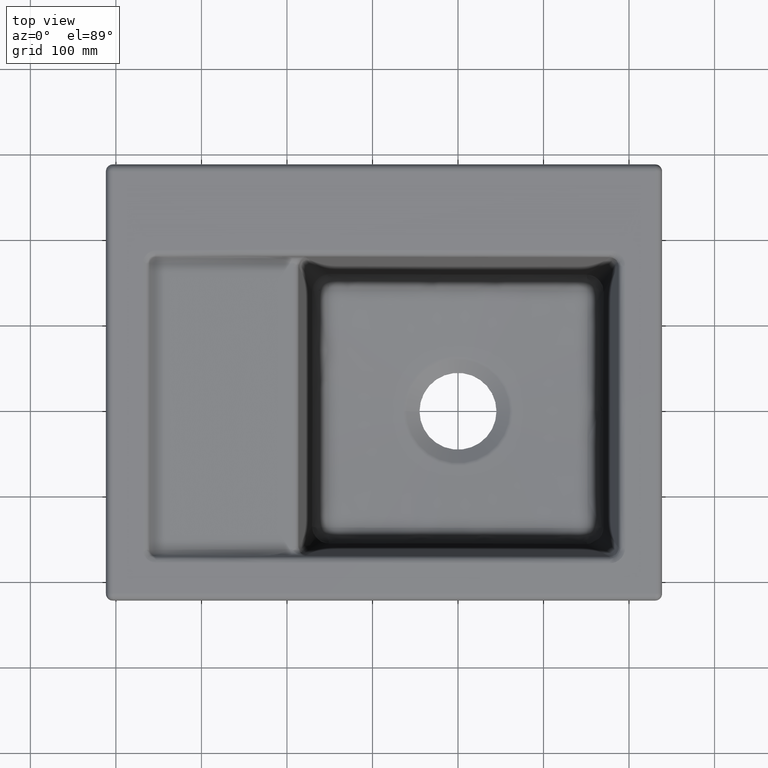
[diagram: clean part render]
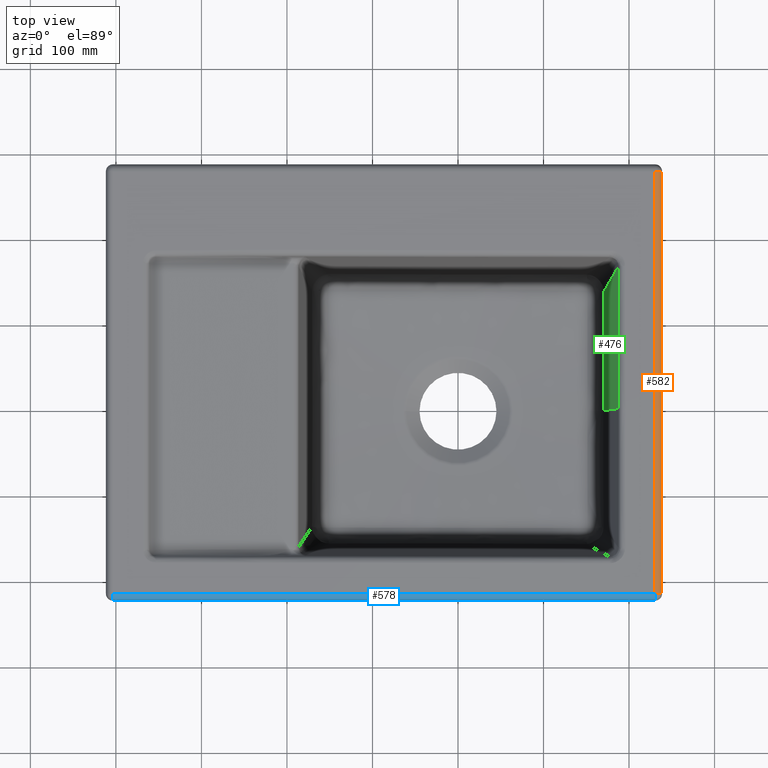
[diagram: same view with three faces highlighted in distinct colors, each labeled with its STEP entity id]
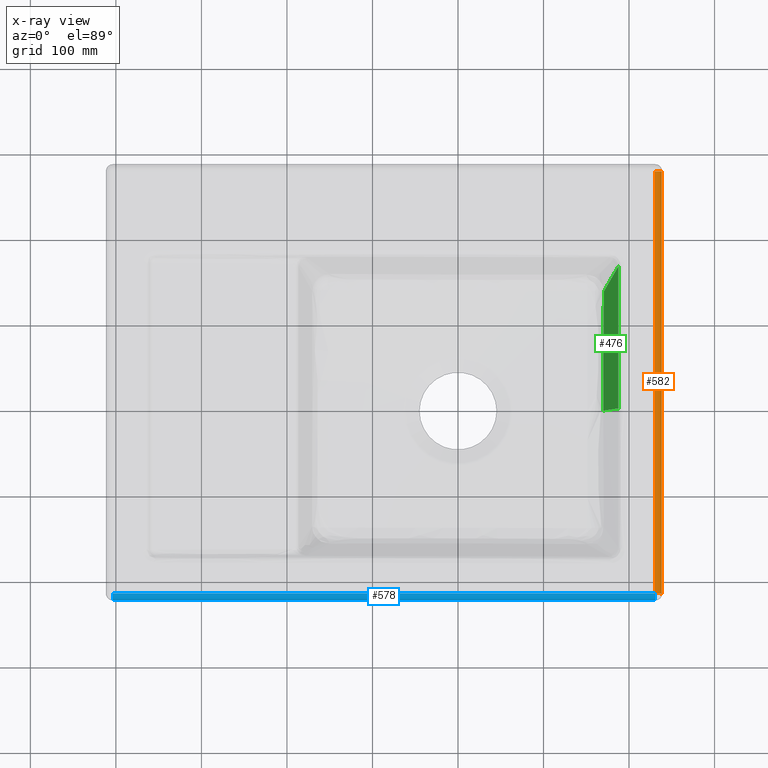
[diagram: x-ray of the same camera — body ghosted, the three highlighted faces saturated]
A machine part, top view with three faces highlighted in distinct colors.
The next image is the same camera in x-ray (body ghosted, the three faces saturated) — at least one of them is partly hidden behind the body in this view.
Their STEP definitions:

[orange] entity #582 — the highlighted cylindrical surface (edge-blend (fillet) strip) has radius 8 mm, axis along (0, -1, 0).
#140=CYLINDRICAL_SURFACE('',#4018,8.00000000000091);
#213=CIRCLE('',#4013,8.);
#215=CIRCLE('',#4017,8.);
#582=ADVANCED_FACE('',(#870),#140,.T.);
#870=FACE_OUTER_BOUND('',#1139,.T.);
#1139=EDGE_LOOP('',(#2233,#2234,#2235,#2236));
#2233=ORIENTED_EDGE('',*,*,#3571,.T.);
#2234=ORIENTED_EDGE('',*,*,#3264,.F.);
#2235=ORIENTED_EDGE('',*,*,#3573,.F.);
#2236=ORIENTED_EDGE('',*,*,#3278,.F.);
#2911=VERTEX_POINT('',#6353);
#2912=VERTEX_POINT('',#6355);
#2924=VERTEX_POINT('',#6539);
#2925=VERTEX_POINT('',#6541);
#3264=EDGE_CURVE('',#2911,#2912,#3771,.T.);
#3278=EDGE_CURVE('',#2924,#2925,#3781,.T.);
#3571=EDGE_CURVE('',#2924,#2912,#213,.T.);
#3573=EDGE_CURVE('',#2925,#2911,#215,.T.);
#3771=LINE('',#6354,#3850);
#3781=LINE('',#6540,#3860);
#3850=VECTOR('',#4258,1.);
#3860=VECTOR('',#4274,1.);
#4013=AXIS2_PLACEMENT_3D('',#14794,#4473,#4474);
#4017=AXIS2_PLACEMENT_3D('',#14798,#4481,#4482);
#4018=AXIS2_PLACEMENT_3D('',#14799,#4483,#4484);
#4258=DIRECTION('',(0.,-1.,0.));
#4274=DIRECTION('',(0.,1.,0.));
#4473=DIRECTION('',(-3.4885576356957E-15,1.,0.));
#4474=DIRECTION('',(-1.,-3.46944695195361E-15,0.));
#4481=DIRECTION('',(-6.9771152713916E-15,1.,0.));
#4482=DIRECTION('',(-1.,-6.93889390390723E-15,0.));
#4483=DIRECTION('',(0.,-1.,0.));
#4484=DIRECTION('',(0.,0.,-0.999999999999998));
#6353=CARTESIAN_POINT('',(238.319687992531,276.812870199513,212.836227706563));
#6354=CARTESIAN_POINT('',(238.319687992531,30.0154674628055,212.836227706563));
#6355=CARTESIAN_POINT('',(238.319687992527,-216.781935273899,212.836227706587));
#6539=CARTESIAN_POINT('',(230.363512829581,-216.781935273902,220.000000000421));
#6540=CARTESIAN_POINT('',(230.363512829584,30.0154674628054,220.000000000421));
#6541=CARTESIAN_POINT('',(230.363512829585,276.812870199513,220.000000000421));
#14794=CARTESIAN_POINT('',(230.363512829581,-216.781935273899,212.000000000421));
#14798=CARTESIAN_POINT('',(230.363512829585,276.812870199513,212.000000000421));
#14799=CARTESIAN_POINT('',(230.363512829584,-216.781935273902,212.000000000421));

[blue] entity #578 — the highlighted cylindrical surface (edge-blend (fillet) strip) has radius 8 mm, axis along (-1, -0, 0).
#138=CYLINDRICAL_SURFACE('',#4010,8.00000000000406);
#208=CIRCLE('',#4004,8.);
#211=CIRCLE('',#4009,8.);
#578=ADVANCED_FACE('',(#866),#138,.T.);
#866=FACE_OUTER_BOUND('',#1135,.T.);
#1135=EDGE_LOOP('',(#2219,#2220,#2221,#2222));
#2219=ORIENTED_EDGE('',*,*,#3566,.T.);
#2220=ORIENTED_EDGE('',*,*,#3260,.F.);
#2221=ORIENTED_EDGE('',*,*,#3569,.F.);
#2222=ORIENTED_EDGE('',*,*,#3277,.F.);
#2907=VERTEX_POINT('',#6341);
#2908=VERTEX_POINT('',#6343);
#2923=VERTEX_POINT('',#6538);
#2924=VERTEX_POINT('',#6539);
#3260=EDGE_CURVE('',#2907,#2908,#3768,.T.);
#3277=EDGE_CURVE('',#2923,#2924,#3780,.T.);
#3566=EDGE_CURVE('',#2923,#2908,#208,.T.);
#3569=EDGE_CURVE('',#2924,#2907,#211,.T.);
#3768=LINE('',#6342,#3847);
#3780=LINE('',#6537,#3859);
#3847=VECTOR('',#4253,1.);
#3859=VECTOR('',#4273,1.);
#4004=AXIS2_PLACEMENT_3D('',#14785,#4455,#4456);
#4009=AXIS2_PLACEMENT_3D('',#14790,#4465,#4466);
#4010=AXIS2_PLACEMENT_3D('',#14791,#4467,#4468);
#4253=DIRECTION('',(-1.,0.,0.));
#4273=DIRECTION('',(1.,0.,0.));
#4455=DIRECTION('',(1.,1.3954230542783E-14,0.));
#4456=DIRECTION('',(-1.38777878078145E-14,1.,0.));
#4465=DIRECTION('',(1.,2.79084610855662E-14,0.));
#4466=DIRECTION('',(-2.77555756156289E-14,1.,0.));
#4467=DIRECTION('',(-1.,-1.54128448174998E-14,1.71176983434369E-14));
#4468=DIRECTION('',(1.38777878078074E-14,0.,1.));
#6341=CARTESIAN_POINT('',(230.363512829583,-224.738110436848,212.836227706563));
#6342=CARTESIAN_POINT('',(-86.5216156341328,-224.738110436848,212.836227706563));
#6343=CARTESIAN_POINT('',(-403.406744097843,-224.738110436845,212.836227706591));
#6537=CARTESIAN_POINT('',(-86.5216156341324,-216.781935273902,220.000000000421));
#6538=CARTESIAN_POINT('',(-403.406744097847,-216.781935273899,220.000000000421));
#6539=CARTESIAN_POINT('',(230.363512829581,-216.781935273902,220.000000000421));
#14785=CARTESIAN_POINT('',(-403.406744097844,-216.781935273899,212.000000000421));
#14790=CARTESIAN_POINT('',(230.363512829581,-216.781935273902,212.000000000421));
#14791=CARTESIAN_POINT('',(-403.406744097846,-216.781935273903,212.000000000422));

[green] entity #476 — the highlighted face is a freeform B-spline surface patch.
#108=B_SPLINE_SURFACE_WITH_KNOTS('',3,3,((#5728,#5729,#5730,#5731,#5732,
#5733,#5734,#5735,#5736,#5737,#5738,#5739,#5740),(#5741,#5742,#5743,#5744,
#5745,#5746,#5747,#5748,#5749,#5750,#5751,#5752,#5753),(#5754,#5755,#5756,
#5757,#5758,#5759,#5760,#5761,#5762,#5763,#5764,#5765,#5766),(#5767,#5768,
#5769,#5770,#5771,#5772,#5773,#5774,#5775,#5776,#5777,#5778,#5779),(#5780,
#5781,#5782,#5783,#5784,#5785,#5786,#5787,#5788,#5789,#5790,#5791,#5792),
(#5793,#5794,#5795,#5796,#5797,#5798,#5799,#5800,#5801,#5802,#5803,#5804,
#5805),(#5806,#5807,#5808,#5809,#5810,#5811,#5812,#5813,#5814,#5815,#5816,
#5817,#5818),(#5819,#5820,#5821,#5822,#5823,#5824,#5825,#5826,#5827,#5828,
#5829,#5830,#5831),(#5832,#5833,#5834,#5835,#5836,#5837,#5838,#5839,#5840,
#5841,#5842,#5843,#5844),(#5845,#5846,#5847,#5848,#5849,#5850,#5851,#5852,
#5853,#5854,#5855,#5856,#5857),(#5858,#5859,#5860,#5861,#5862,#5863,#5864,
#5865,#5866,#5867,#5868,#5869,#5870),(#5871,#5872,#5873,#5874,#5875,#5876,
#5877,#5878,#5879,#5880,#5881,#5882,#5883),(#5884,#5885,#5886,#5887,#5888,
#5889,#5890,#5891,#5892,#5893,#5894,#5895,#5896)),.UNSPECIFIED.,.F.,.F.,
 .F.,(4,1,2,2,2,2,4),(4,1,1,2,2,2,1,4),(0.,0.308188576590857,0.377369718931771,
0.446550861272685,0.584913145954514,0.861637715318171,1.),(0.,0.0883892625186422,
0.0988389262518642,0.110891699315591,0.345041319327041,0.462116129332766,
0.5,1.),.UNSPECIFIED.);
#451=(
BOUNDED_CURVE()
B_SPLINE_CURVE(3,(#5673,#5674,#5675,#5676,#5677,#5678,#5679,#5680),
 .UNSPECIFIED.,.F.,.F.)
B_SPLINE_CURVE_WITH_KNOTS((4,2,2,4),(0.,0.104568056302663,0.408141535285834,
1.),.UNSPECIFIED.)
CURVE()
GEOMETRIC_REPRESENTATION_ITEM()
RATIONAL_B_SPLINE_CURVE((1.00000000000003,1.00000000000003,1.00000000000003,
1.00000000000003,1.00000000000003,1.00000000000003,1.00000000000003,1.00000000000003))
REPRESENTATION_ITEM('')
);
#476=ADVANCED_FACE('',(#770),#108,.F.);
#770=FACE_OUTER_BOUND('',#1027,.T.);
#1027=EDGE_LOOP('',(#1718,#1719,#1720,#1721,#1722));
#1342=B_SPLINE_CURVE_WITH_KNOTS('',3,(#5635,#5636,#5637,#5638,#5639,#5640,
#5641,#5642,#5643,#5644,#5645,#5646,#5647),.UNSPECIFIED.,.F.,.F.,(4,1,1,
2,2,2,1,4),(0.,0.0883892625186422,0.0988389262518642,0.110891699315591,
0.345041319327041,0.462116129332766,0.5,1.),.UNSPECIFIED.);
#1343=B_SPLINE_CURVE_WITH_KNOTS('',3,(#5650,#5651,#5652,#5653,#5654,#5655,
#5656,#5657,#5658,#5659,#5660,#5661,#5662,#5663,#5664,#5665,#5666),
 .UNSPECIFIED.,.F.,.F.,(4,2,1,1,1,1,1,1,1,2,2,4),(0.,0.249999999999968,
0.374999999999952,0.437499999999944,0.46874999999994,0.484374999999938,
0.492187499999937,0.496093749999936,0.498046874999936,0.499023437499936,
0.499999999999936,1.),.UNSPECIFIED.);
#1344=B_SPLINE_CURVE_WITH_KNOTS('',3,(#5668,#5669,#5670,#5671),
 .UNSPECIFIED.,.F.,.F.,(4,4),(0.,1.),.UNSPECIFIED.);
#1345=B_SPLINE_CURVE_WITH_KNOTS('',3,(#5682,#5683,#5684,#5685,#5686,#5687,
#5688,#5689,#5690,#5691,#5692,#5693,#5694,#5695,#5696,#5697,#5698,#5699,
#5700,#5701,#5702,#5703,#5704,#5705,#5706,#5707,#5708,#5709,#5710,#5711,
#5712,#5713,#5714,#5715,#5716,#5717,#5718,#5719,#5720,#5721,#5722,#5723,
#5724,#5725,#5726,#5727),.UNSPECIFIED.,.F.,.F.,(4,2,2,1,1,1,2,2,2,2,2,1,
2,2,2,2,1,1,2,2,2,2,1,1,2,2,4),(0.,0.0312499999999792,0.0468749999999691,
0.0546874999999643,0.0585937499999617,0.0605468749999604,0.06152343749996,
0.0624999999999596,0.0937499999999632,0.109374999999965,0.117187499999967,
0.121093749999967,0.123046874999967,0.124999999999968,0.187499999999975,
0.218749999999979,0.234374999999981,0.242187499999981,0.246093749999982,
0.249999999999982,0.374999999999985,0.437499999999987,0.468749999999988,
0.484374999999988,0.492187499999988,0.499999999999988,1.),.UNSPECIFIED.);
#1718=ORIENTED_EDGE('',*,*,#3242,.F.);
#1719=ORIENTED_EDGE('',*,*,#3243,.T.);
#1720=ORIENTED_EDGE('',*,*,#3244,.T.);
#1721=ORIENTED_EDGE('',*,*,#3245,.F.);
#1722=ORIENTED_EDGE('',*,*,#3246,.T.);
#2893=VERTEX_POINT('',#5648);
#2894=VERTEX_POINT('',#5649);
#2895=VERTEX_POINT('',#5667);
#2896=VERTEX_POINT('',#5672);
#2897=VERTEX_POINT('',#5681);
#3242=EDGE_CURVE('',#2893,#2894,#1342,.T.);
#3243=EDGE_CURVE('',#2893,#2895,#1343,.T.);
#3244=EDGE_CURVE('',#2895,#2896,#1344,.T.);
#3245=EDGE_CURVE('',#2897,#2896,#451,.T.);
#3246=EDGE_CURVE('',#2897,#2894,#1345,.T.);
#5635=CARTESIAN_POINT('',(192.938459606557,-0.507236343425393,262.815676832514));
#5636=CARTESIAN_POINT('',(191.580489916179,-0.479619340574617,250.201950722395));
#5637=CARTESIAN_POINT('',(190.065742301018,-0.448552356125545,236.096015858372));
#5638=CARTESIAN_POINT('',(188.372397154837,-0.41339645410801,220.268371757742));
#5639=CARTESIAN_POINT('',(188.029069017683,-0.406248341425128,217.056509133035));
#5640=CARTESIAN_POINT('',(184.274469417593,-0.327937664055617,181.914658481495));
#5641=CARTESIAN_POINT('',(180.737507554618,-0.251751435371504,148.490019634717));
#5642=CARTESIAN_POINT('',(175.509654623625,-0.133644452782765,98.3431274542917));
#5643=CARTESIAN_POINT('',(173.779637817982,-0.0937408683185762,81.6259123464163));
#5644=CARTESIAN_POINT('',(171.506921696779,-0.0411448976785077,59.4967794169765));
#5645=CARTESIAN_POINT('',(163.638280595051,0.141332881465495,-17.3085930698405));
#5646=CARTESIAN_POINT('',(156.050321412657,0.318056312261053,-94.045431919979));
#5647=CARTESIAN_POINT('',(148.996792206641,0.482332878665927,-165.377593967289));
#5648=CARTESIAN_POINT('',(187.579649364485,-0.396870202178857,212.849492274026));
#5649=CARTESIAN_POINT('',(169.937694059036,-0.0047459678104341,44.152226689807));
#5650=CARTESIAN_POINT('',(187.579649364485,-0.39687020215937,212.849492274026));
#5651=CARTESIAN_POINT('',(187.580310843601,15.6019419016766,212.849703937558));
#5652=CARTESIAN_POINT('',(187.581052598758,30.5316557812151,212.849713902429));
#5653=CARTESIAN_POINT('',(187.582221599072,51.3225327895536,212.849598358554));
#5654=CARTESIAN_POINT('',(187.582820041117,61.3170480789006,212.849504668166));
#5655=CARTESIAN_POINT('',(187.583527575989,72.27569260674,212.849340822485));
#5656=CARTESIAN_POINT('',(187.583881770483,77.5796082652927,212.849244586516));
#5657=CARTESIAN_POINT('',(187.584058736857,80.1877143509423,212.849192778612));
#5658=CARTESIAN_POINT('',(187.584147157598,81.4808044469391,212.849165933197));
#5659=CARTESIAN_POINT('',(187.584191348641,82.1246087569037,212.849152272464));
#5660=CARTESIAN_POINT('',(187.584213438867,82.445825727214,212.849145382241));
#5661=CARTESIAN_POINT('',(187.584222904923,82.583343317757,212.849142416424));
#5662=CARTESIAN_POINT('',(187.584229215357,82.6749890836051,212.849140436349));
#5663=CARTESIAN_POINT('',(187.584229467107,82.6786572538924,212.849140358597));
#5664=CARTESIAN_POINT('',(187.587337364245,127.786056647559,212.848162262821));
#5665=CARTESIAN_POINT('',(187.590147721202,155.507063696503,212.846413084964));
#5666=CARTESIAN_POINT('',(187.591185452877,165.930041780157,212.845786814364));
#5667=CARTESIAN_POINT('',(187.591172588666,165.931598266589,212.845662196791));
#5668=CARTESIAN_POINT('',(187.591185452877,165.930041780157,212.845786814364));
#5669=CARTESIAN_POINT('',(187.590517919748,165.9295266124,212.839508752771));
#5670=CARTESIAN_POINT('',(187.589850387877,165.929011435795,212.83323069194));
#5671=CARTESIAN_POINT('',(187.589182857262,165.928496250342,212.826952631873));
#5672=CARTESIAN_POINT('',(187.589182548526,165.92852699298,212.826947621547));
#5673=CARTESIAN_POINT('',(170.41732405214,139.092896218375,48.0067126561566));
#5674=CARTESIAN_POINT('',(171.001234125494,140.021739436364,53.7522460590946));
#5675=CARTESIAN_POINT('',(171.586785605757,140.951102753709,59.4981576845857));
#5676=CARTESIAN_POINT('',(173.878879123961,144.581014569042,81.9276936886484));
#5677=CARTESIAN_POINT('',(175.597264674069,147.285301000389,98.6085271987273));
#5678=CARTESIAN_POINT('',(180.704669972646,155.281223719755,147.805866213439));
#5679=CARTESIAN_POINT('',(184.132250953782,160.593354291678,180.317485017705));
#5680=CARTESIAN_POINT('',(187.58918278625,165.928525856085,212.826947782845));
#5681=CARTESIAN_POINT('',(170.417318358314,139.092923489159,48.0067088261305));
#5682=CARTESIAN_POINT('',(170.417338071288,139.092911468319,48.0069563107211));
#5683=CARTESIAN_POINT('',(170.409111906044,137.836347241972,47.9465776206832));
#5684=CARTESIAN_POINT('',(170.400304415831,136.483949892244,47.8818668415224));
#5685=CARTESIAN_POINT('',(170.386341659794,134.311793423856,47.7791665432859));
#5686=CARTESIAN_POINT('',(170.381561583486,133.56381492586,47.7439868921634));
#5687=CARTESIAN_POINT('',(170.374211223172,132.40598497488,47.6898251058363));
#5688=CARTESIAN_POINT('',(170.370490901482,131.818104486981,47.6623951595693));
#5689=CARTESIAN_POINT('',(170.366072454245,131.116560656312,47.6297773441315));
#5690=CARTESIAN_POINT('',(170.363843751155,130.76186875481,47.613312783675));
#5691=CARTESIAN_POINT('',(170.362884420482,130.609018032439,47.6062229921513));
#5692=CARTESIAN_POINT('',(170.36224393954,130.506930914799,47.6014889840568));
#5693=CARTESIAN_POINT('',(170.361705973517,130.421138082757,47.5975119513066));
#5694=CARTESIAN_POINT('',(170.358277085595,129.874188339214,47.5721610656598));
#5695=CARTESIAN_POINT('',(170.352006286007,128.884631979965,47.5256357763743));
#5696=CARTESIAN_POINT('',(170.338619858617,126.712076724783,47.42612939937));
#5697=CARTESIAN_POINT('',(170.333497518099,125.873193628818,47.3880263628071));
#5698=CARTESIAN_POINT('',(170.324877048386,124.442941124984,47.3236991966023));
#5699=CARTESIAN_POINT('',(170.321847221445,123.937536004181,47.3010582962696));
#5700=CARTESIAN_POINT('',(170.317071713992,123.136465062756,47.2652849791935));
#5701=CARTESIAN_POINT('',(170.314626227077,122.725188811593,47.2469447595633));
#5702=CARTESIAN_POINT('',(170.312094394248,122.297805112616,47.2279155659168));
#5703=CARTESIAN_POINT('',(170.310387309002,122.009303649562,47.2150748915385));
#5704=CARTESIAN_POINT('',(170.309278536077,121.821657029752,47.2067265946339));
#5705=CARTESIAN_POINT('',(170.288583763013,118.316294062044,47.0508033472925));
#5706=CARTESIAN_POINT('',(170.270819170713,115.168792532433,46.9148394711397));
#5707=CARTESIAN_POINT('',(170.247029924115,110.823971450186,46.7312567020174));
#5708=CARTESIAN_POINT('',(170.23957850378,109.438438096223,46.6734608137039));
#5709=CARTESIAN_POINT('',(170.229065186382,107.454136360411,46.5916379910934));
#5710=CARTESIAN_POINT('',(170.223974692861,106.485485233339,46.5519452959891));
#5711=CARTESIAN_POINT('',(170.218316905047,105.396494018793,46.5077297548972));
#5712=CARTESIAN_POINT('',(170.2159514636,104.938588692238,46.4892248935386));
#5713=CARTESIAN_POINT('',(170.214387586933,104.635274928756,46.4769867264413));
#5714=CARTESIAN_POINT('',(170.213839784112,104.52890735603,46.4726990124863));
#5715=CARTESIAN_POINT('',(170.180955414861,98.1265233568426,46.2151986497993));
#5716=CARTESIAN_POINT('',(170.152439340667,92.1260167659788,45.9895933149863));
#5717=CARTESIAN_POINT('',(170.114261859892,83.434426541607,45.6848696575407));
#5718=CARTESIAN_POINT('',(170.102304663766,80.5887607541113,45.5889265383177));
#5719=CARTESIAN_POINT('',(170.085475261252,76.3972542659724,45.4532356248468));
#5720=CARTESIAN_POINT('',(170.077337231062,74.3207493252734,45.3874467056113));
#5721=CARTESIAN_POINT('',(170.068317606926,71.9317809015998,45.314249139934));
#5722=CARTESIAN_POINT('',(170.064552821028,70.9151350518513,45.2836365839175));
#5723=CARTESIAN_POINT('',(170.062065250626,70.2389699179049,45.2633961616633));
#5724=CARTESIAN_POINT('',(170.061029839384,69.956015206135,45.2549668448034));
#5725=CARTESIAN_POINT('',(169.968809044778,44.5531935897938,44.5036052570309));
#5726=CARTESIAN_POINT('',(169.930842806825,21.3942076398618,44.1508531108256));
#5727=CARTESIAN_POINT('',(169.937694059036,-0.00474596888040826,44.1522266898025));
#5728=CARTESIAN_POINT('',(192.780139339548,271.386501051459,261.714639821106));
#5729=CARTESIAN_POINT('',(191.473619248861,268.141791371925,249.424550609189));
#5730=CARTESIAN_POINT('',(190.015646137086,264.517515198306,235.681192964546));
#5731=CARTESIAN_POINT('',(188.384791948202,260.457833536883,220.261440929076));
#5732=CARTESIAN_POINT('',(188.054091996928,259.63434272686,217.132401105434));
#5733=CARTESIAN_POINT('',(184.437347198712,250.626353977019,182.896917516392));
#5734=CARTESIAN_POINT('',(181.025959428442,242.095977183016,150.335832296903));
#5735=CARTESIAN_POINT('',(175.992752683153,229.364687981631,101.4834902659));
#5736=CARTESIAN_POINT('',(174.328473862061,225.130790770623,85.1975743585325));
#5737=CARTESIAN_POINT('',(172.144026031843,219.536002970251,63.6387134687935));
#5738=CARTESIAN_POINT('',(164.583267057166,200.128217026041,-11.186866867733));
#5739=CARTESIAN_POINT('',(157.321727095204,180.869690844023,-85.941191888431));
#5740=CARTESIAN_POINT('',(150.571626973259,162.967568069676,-155.430471170922));
#5741=CARTESIAN_POINT('',(192.837252623085,238.968443546535,262.163822073193));
#5742=CARTESIAN_POINT('',(191.513331787194,236.114258216063,249.741480838731));
#5743=CARTESIAN_POINT('',(190.035994341358,232.926216656811,235.850154741354));
#5744=CARTESIAN_POINT('',(188.383554595584,229.355220276909,220.264259533447));
#5745=CARTESIAN_POINT('',(188.048478694423,228.630859445296,217.101499484999));
#5746=CARTESIAN_POINT('',(184.383900435372,220.707246609724,182.497054533775));
#5747=CARTESIAN_POINT('',(180.927680443947,213.203997142684,149.584884660772));
#5748=CARTESIAN_POINT('',(175.82647602659,202.006191923254,100.206008680442));
#5749=CARTESIAN_POINT('',(174.139429266696,198.282343511071,83.7446073901697));
#5750=CARTESIAN_POINT('',(171.924696062827,193.361533310092,61.953546686072));
#5751=CARTESIAN_POINT('',(164.258634530587,176.291716205846,-13.678067882143));
#5752=CARTESIAN_POINT('',(156.889581908248,159.352677169355,-89.2387516296555));
#5753=CARTESIAN_POINT('',(150.039541384444,143.60667700068,-159.477596729969));
#5754=CARTESIAN_POINT('',(192.907186505757,199.273288767361,262.713835256985));
#5755=CARTESIAN_POINT('',(191.561958863497,196.897291387502,250.129554507672));
#5756=CARTESIAN_POINT('',(190.060910242563,194.24340893185,236.057044493497));
#5757=CARTESIAN_POINT('',(188.382039486184,191.270796273283,220.267710848712));
#5758=CARTESIAN_POINT('',(188.041605336521,190.667817786547,217.063661172019));
#5759=CARTESIAN_POINT('',(184.318456121106,184.071997948725,182.007431644341));
#5760=CARTESIAN_POINT('',(180.807340121257,177.826441920459,148.665366807405));
#5761=CARTESIAN_POINT('',(175.622874141517,168.506352045503,98.6417622953955));
#5762=CARTESIAN_POINT('',(173.907948571961,165.407046482972,81.9654832495753));
#5763=CARTESIAN_POINT('',(171.656131634914,161.31150612185,59.890099292326));
#5764=CARTESIAN_POINT('',(163.861129578694,147.10447729408,-16.7284853797995));
#5765=CARTESIAN_POINT('',(156.360430213116,133.005596130599,-93.2765365678865));
#5766=CARTESIAN_POINT('',(149.388014999889,119.899717768798,-164.433207517261));
#5767=CARTESIAN_POINT('',(192.922620115972,159.580171191151,262.758472087609));
#5768=CARTESIAN_POINT('',(191.572144507837,157.681761596074,250.161151269525));
#5769=CARTESIAN_POINT('',(190.065335674123,155.561367001225,236.073960598986));
#5770=CARTESIAN_POINT('',(188.380181261479,153.186385037343,220.26799511821));
#5771=CARTESIAN_POINT('',(188.038481210835,152.704636087965,217.060562672783));
#5772=CARTESIAN_POINT('',(184.301521751503,147.434937363778,181.967294497027));
#5773=CARTESIAN_POINT('',(180.778079206817,142.445484736794,148.589776847259));
#5774=CARTESIAN_POINT('',(175.57420586014,135.00072515009,98.5131070302353));
#5775=CARTESIAN_POINT('',(173.852686212689,132.525167418459,81.8191713044175));
#5776=CARTESIAN_POINT('',(171.591957733932,129.253844620845,59.720503318996));
#5777=CARTESIAN_POINT('',(163.765804882273,117.90595146704,-16.9789467580515));
#5778=CARTESIAN_POINT('',(156.231248504204,106.643575571868,-93.6082606871765));
#5779=CARTESIAN_POINT('',(149.227360872546,96.1744236699893,-164.840470935522));
#5780=CARTESIAN_POINT('',(192.927469001028,145.026731411102,262.773108122494));
#5781=CARTESIAN_POINT('',(191.575307890998,143.303426664366,250.171515890609));
#5782=CARTESIAN_POINT('',(190.066653686518,141.378632355284,236.079512565082));
#5783=CARTESIAN_POINT('',(188.379494804186,139.222768280391,220.268088510322));
#5784=CARTESIAN_POINT('',(188.037391540398,138.78546744987,217.059545521424));
#5785=CARTESIAN_POINT('',(184.296034594359,134.001983471927,181.954116788799));
#5786=CARTESIAN_POINT('',(180.768705954769,129.473073971416,148.564950529602));
#5787=CARTESIAN_POINT('',(175.558667046928,122.715893464036,98.4708495649901));
#5788=CARTESIAN_POINT('',(173.835046397565,120.469029285482,81.7711150995892));
#5789=CARTESIAN_POINT('',(171.571469704326,117.49990110818,59.664803555015));
#5790=CARTESIAN_POINT('',(163.735350525153,107.200293565147,-17.0611942523275));
#5791=CARTESIAN_POINT('',(156.189835587267,96.9779058618034,-93.717201594561));
#5792=CARTESIAN_POINT('',(149.175761221619,87.4754944112958,-164.974225203712));
#5793=CARTESIAN_POINT('',(192.929359456413,137.750020852738,262.778211763397));
#5794=CARTESIAN_POINT('',(191.576512953447,136.114265781965,250.175136247657));
#5795=CARTESIAN_POINT('',(190.067111890429,134.287268540072,236.081456158511));
#5796=CARTESIAN_POINT('',(188.379148196254,132.240959960407,220.268121332319));
#5797=CARTESIAN_POINT('',(188.036883471369,131.825882489351,217.059189157998));
#5798=CARTESIAN_POINT('',(184.293766720055,127.285498226237,181.949497353367));
#5799=CARTESIAN_POINT('',(180.764912482996,122.986853005579,148.556235035021));
#5800=CARTESIAN_POINT('',(175.552416969545,116.573451112786,98.4560108649651));
#5801=CARTESIAN_POINT('',(173.827954544218,114.440930069078,81.7542411525559));
#5802=CARTESIAN_POINT('',(171.563230009392,111.622894381838,59.6452515699705));
#5803=CARTESIAN_POINT('',(163.723086624286,101.847412912938,-17.090050011026));
#5804=CARTESIAN_POINT('',(156.173051364509,92.1450025744575,-93.7554339683199));
#5805=CARTESIAN_POINT('',(149.154775049203,83.1259457969736,-165.021173785162));
#5806=CARTESIAN_POINT('',(192.934138474537,115.919903183986,262.790231007571));
#5807=CARTESIAN_POINT('',(191.579498740878,114.546793015864,250.183675469607));
#5808=CARTESIAN_POINT('',(190.068150975364,113.013182359475,236.086049586433));
#5809=CARTESIAN_POINT('',(188.378102740767,111.295535088244,220.268199173464));
#5810=CARTESIAN_POINT('',(188.035420676416,110.947126644969,217.058346333606));
#5811=CARTESIAN_POINT('',(184.287757686304,107.136030031534,181.938566618558));
#5812=CARTESIAN_POINT('',(180.755023941371,103.528166718352,148.535585186673));
#5813=CARTESIAN_POINT('',(175.536204537898,98.1460842711938,98.4208449961409));
#5814=CARTESIAN_POINT('',(173.809565426946,96.3565871659848,81.7142540746595));
#5815=CARTESIAN_POINT('',(171.541858825689,93.9918217141468,59.5989305676595));
#5816=CARTESIAN_POINT('',(163.691244611031,85.7886933547004,-17.1583807315595));
#5817=CARTESIAN_POINT('',(156.129250173379,77.6461899974069,-93.845992931349));
#5818=CARTESIAN_POINT('',(149.099856980876,70.0771738943653,-165.132395426241));
#5819=CARTESIAN_POINT('',(192.936441527001,101.366502310936,262.795747320763));
#5820=CARTESIAN_POINT('',(191.580866499701,100.168485533227,250.187607317708));
#5821=CARTESIAN_POINT('',(190.068511671598,98.8304623386752,236.088173428806));
#5822=CARTESIAN_POINT('',(188.377400184476,97.3319185751671,220.268235427436));
#5823=CARTESIAN_POINT('',(188.0345062703,97.0279553323384,217.057956053689));
#5824=CARTESIAN_POINT('',(184.284538210102,93.7030415348499,181.93349977062));
#5825=CARTESIAN_POINT('',(180.749908353182,90.5556909809814,148.525987341457));
#5826=CARTESIAN_POINT('',(175.527908362922,85.8611420624088,98.4044924215637));
#5827=CARTESIAN_POINT('',(173.800163241518,84.3003233266972,81.6956615665743));
#5828=CARTESIAN_POINT('',(171.530925383401,82.2377323983856,59.5774048893965));
#5829=CARTESIAN_POINT('',(163.674916190581,75.0828198908702,-17.1901037024225));
#5830=CARTESIAN_POINT('',(156.10653454257,67.9802349666921,-93.888058877667));
#5831=CARTESIAN_POINT('',(149.071203999358,61.3778944695067,-165.184075878606));
#5832=CARTESIAN_POINT('',(192.941363236866,57.7063081480323,262.810818556723));
#5833=CARTESIAN_POINT('',(191.583567614111,57.0335690385543,250.198360541773));
#5834=CARTESIAN_POINT('',(190.06884736998,56.2823054555056,236.09398940246));
#5835=CARTESIAN_POINT('',(188.37528037473,55.4410690888371,220.268334894669));
#5836=CARTESIAN_POINT('',(188.031899101736,55.2704408132192,217.056886854201));
#5837=CARTESIAN_POINT('',(184.276640079848,53.4040685245026,181.919614312964));
#5838=CARTESIAN_POINT('',(180.737866620882,51.6382496492097,148.499662933941));
#5839=CARTESIAN_POINT('',(175.508641971128,49.0062914173429,98.3596348889225));
#5840=CARTESIAN_POINT('',(173.778351185324,48.1315044904406,81.6446612543979));
#5841=CARTESIAN_POINT('',(171.505541851389,46.9754327652909,59.518368804084));
#5842=CARTESIAN_POINT('',(163.63689625623,42.9651526536334,-17.277080623151));
#5843=CARTESIAN_POINT('',(156.052901509167,38.9823078688358,-94.0034136823525));
#5844=CARTESIAN_POINT('',(149.003057518069,35.2799800969908,-165.325809875442));
#5845=CARTESIAN_POINT('',(192.94128212785,28.599539762362,262.813648264192));
#5846=CARTESIAN_POINT('',(191.582996359947,28.276977581651,250.200438164777));
#5847=CARTESIAN_POINT('',(190.067808216871,27.9168779552755,236.095153408952));
#5848=CARTESIAN_POINT('',(188.373846516272,27.5138362715645,220.268355926879));
#5849=CARTESIAN_POINT('',(188.030391354624,27.4320958948468,217.056670294527));
#5850=CARTESIAN_POINT('',(184.274355271576,26.5380618614069,181.91677800882));
#5851=CARTESIAN_POINT('',(180.735435020282,25.6932424683411,148.494168395409));
#5852=CARTESIAN_POINT('',(175.505317344421,24.4363122390437,98.3502365319225));
#5853=CARTESIAN_POINT('',(173.774637253535,24.018869032936,81.6339849104673));
#5854=CARTESIAN_POINT('',(171.501177928601,23.4671291241202,59.506064086219));
#5855=CARTESIAN_POINT('',(163.6301165905,21.5532209060192,-17.295069335151));
#5856=CARTESIAN_POINT('',(156.041721636276,19.6501531771308,-94.0273777542255));
#5857=CARTESIAN_POINT('',(148.987787350415,17.8811210191971,-165.355328454709));
#5858=CARTESIAN_POINT('',(192.937048345919,-15.0606246173982,262.816691116742));
#5859=CARTESIAN_POINT('',(191.579236694291,-14.8579180201055,250.202707001252));
#5860=CARTESIAN_POINT('',(190.06470934308,-14.6312677272721,236.096447083108));
#5861=CARTESIAN_POINT('',(188.371672474107,-14.377013029062,220.268379673175));
#5862=CARTESIAN_POINT('',(188.028407849202,-14.3254206710037,217.056428552284));
#5863=CARTESIAN_POINT('',(184.274526490598,-13.7609376308443,181.91359871777));
#5864=CARTESIAN_POINT('',(180.738543821795,-13.2242485842901,148.487945254253));
#5865=CARTESIAN_POINT('',(175.511823263245,-12.4186229853146,98.3395729152745));
#5866=CARTESIAN_POINT('',(173.782138100228,-12.1500460020908,81.6218760641615));
#5867=CARTESIAN_POINT('',(171.509793580892,-11.7952820871328,59.4921370820905));
#5868=CARTESIAN_POINT('',(163.642362597359,-10.5646112934436,-17.3153549375775));
#5869=CARTESIAN_POINT('',(156.054621300961,-9.34799226701581,-94.0544590033515));
#5870=CARTESIAN_POINT('',(149.001294634942,-8.21706132376348,-165.388726724171));
#5871=CARTESIAN_POINT('',(192.935006966224,-29.6140147166385,262.817499169747));
#5872=CARTESIAN_POINT('',(191.577540487946,-29.2362178840342,250.203317777537));
#5873=CARTESIAN_POINT('',(190.063435768967,-28.8139836989621,236.09680118831));
#5874=CARTESIAN_POINT('',(188.370942166851,-28.340629474461,220.268386476724));
#5875=CARTESIAN_POINT('',(188.02779303327,-28.2445927243358,217.056361821081));
#5876=CARTESIAN_POINT('',(184.275183302177,-27.193935711196,181.91271814828));
#5877=CARTESIAN_POINT('',(180.7407061227,-26.1967423153886,148.486207318307));
#5878=CARTESIAN_POINT('',(175.515907379333,-24.703595802919,98.3365906962009));
#5879=CARTESIAN_POINT('',(173.786817006521,-24.2063446552281,81.6184907269913));
#5880=CARTESIAN_POINT('',(171.515192387734,-23.5494117824666,59.4882497594925));
#5881=CARTESIAN_POINT('',(163.650180517227,-21.2705444562718,-17.3210005607885));
#5882=CARTESIAN_POINT('',(156.063866101423,-19.0140263161569,-94.062008610034));
#5883=CARTESIAN_POINT('',(149.011865818916,-16.9164377257835,-165.398046214255));
#5884=CARTESIAN_POINT('',(192.932437763225,-44.1674062895917,262.818158495772));
#5885=CARTESIAN_POINT('',(191.575471230314,-43.6145188181942,250.203823663119));
#5886=CARTESIAN_POINT('',(190.061965658211,-42.9967002233091,236.097099184128));
#5887=CARTESIAN_POINT('',(188.370209390483,-42.3042459293486,220.268392257907));
#5888=CARTESIAN_POINT('',(188.027212981743,-42.1637646762045,217.056305477037));
#5889=CARTESIAN_POINT('',(184.276289917685,-40.6269324787487,181.911971974437));
#5890=CARTESIAN_POINT('',(180.743712948908,-39.1692335816532,148.484721715692));
#5891=CARTESIAN_POINT('',(175.521428102782,-36.9885644276371,98.3340377169837));
#5892=CARTESIAN_POINT('',(173.793129880862,-36.2626385394617,81.6155935985199));
#5893=CARTESIAN_POINT('',(171.522486386636,-35.3035359464875,59.484928695978));
#5894=CARTESIAN_POINT('',(163.660800375269,-31.9764694413554,-17.3258090008065));
#5895=CARTESIAN_POINT('',(156.07681958647,-28.6800495411212,-94.0684501093065));
#5896=CARTESIAN_POINT('',(149.026988570537,-25.6158008435863,-165.406005754266));